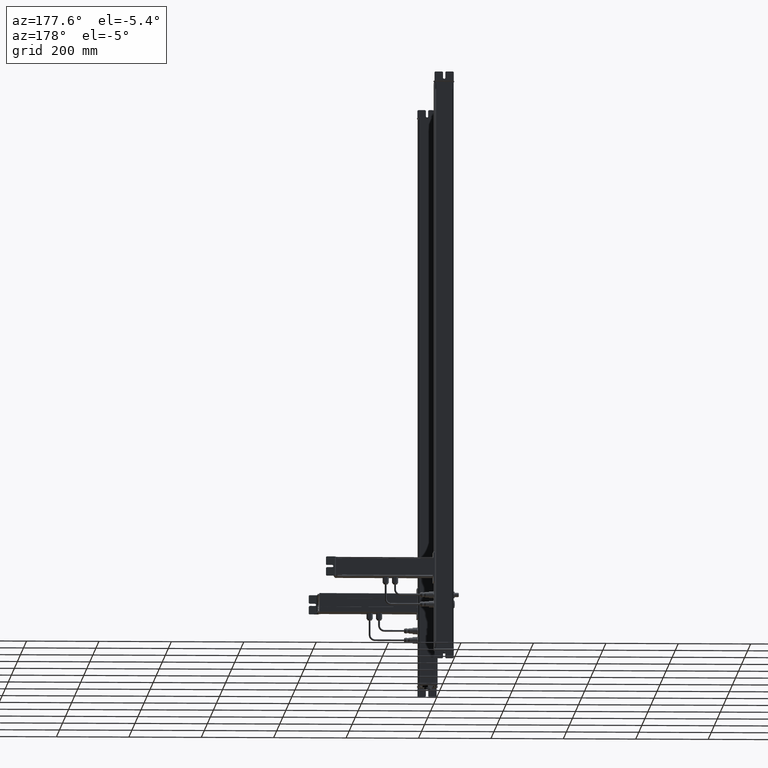
[diagram: clean part render]
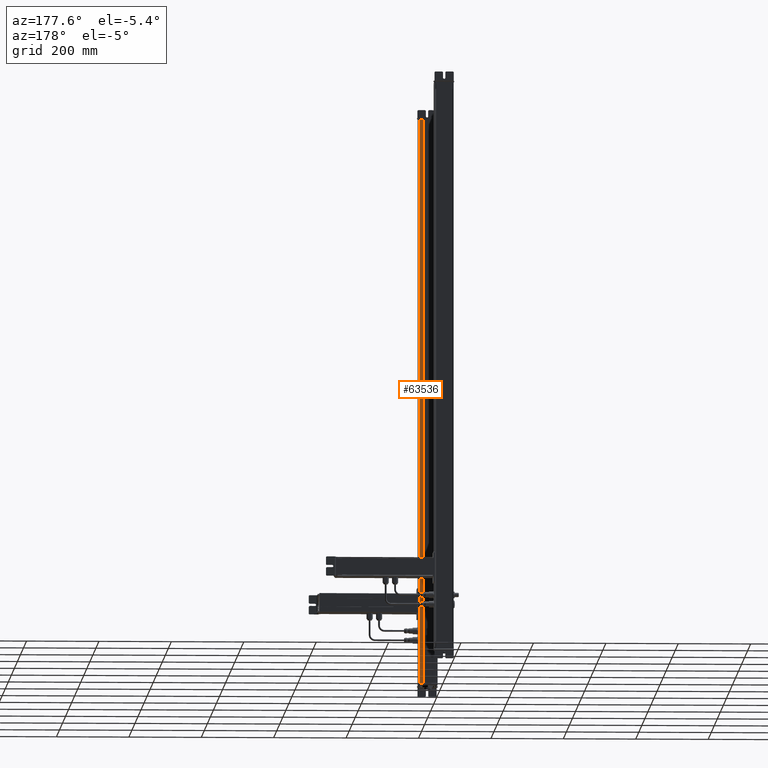
[diagram: same view with one face highlighted and labeled with its STEP entity id]
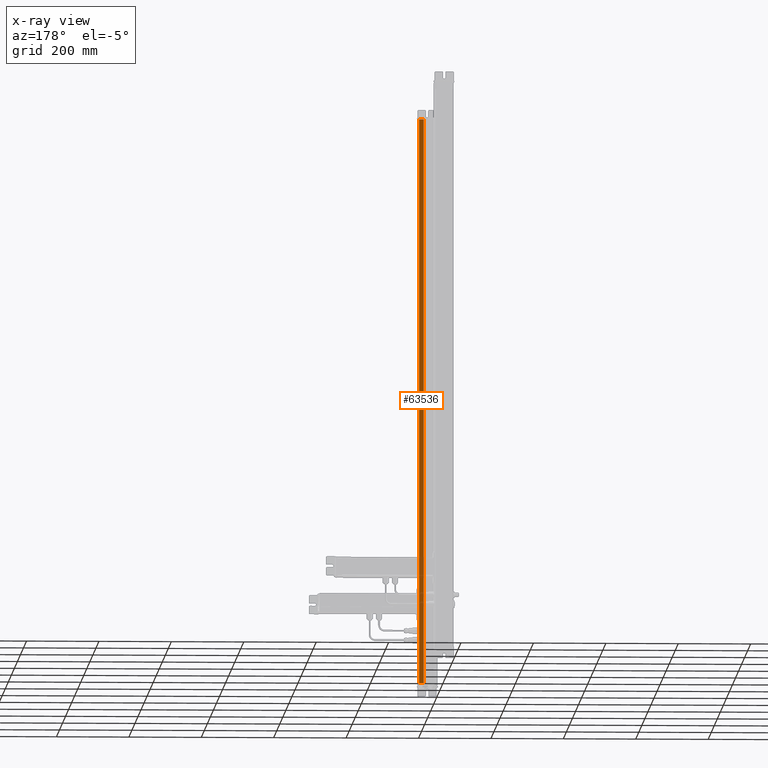
[diagram: x-ray of the same camera — body ghosted, the highlighted face saturated]
A machine part, auxiliary view. The second image highlights one B-rep face of the part: STEP entity #63536.
The next image is the same camera in x-ray: the body ghosted, the highlighted face saturated — about 5% of this face is hidden behind the body in this view.
In plain terms, the highlighted planar face has unit normal (0, 1, 0).
Its self-contained STEP definition (entity closure, byte-faithful):
#59637=CARTESIAN_POINT('Axis2P3D Location',(664.195883662,182.060203323,0.)) ;
#63489=CARTESIAN_POINT('Vertex',(664.195883661,182.060203323,0.)) ;
#63492=CARTESIAN_POINT('Line Origine',(664.195883661,182.060203323,781.)) ;
#63496=CARTESIAN_POINT('Vertex',(664.195883661,182.060203323,1562.)) ;
#63511=CARTESIAN_POINT('Line Origine',(657.845883661,182.060203323,0.)) ;
#63515=CARTESIAN_POINT('Vertex',(651.495883661,182.060203323,0.)) ;
#63518=CARTESIAN_POINT('Line Origine',(651.495883661,182.060203323,781.)) ;
#63522=CARTESIAN_POINT('Vertex',(651.495883661,182.060203323,1562.)) ;
#63525=CARTESIAN_POINT('Line Origine',(657.845883661,182.060203323,1562.)) ;
#59638=DIRECTION('Axis2P3D Direction',(0.,1.,-0.)) ;
#59639=DIRECTION('Axis2P3D XDirection',(-1.,0.,0.)) ;
#63493=DIRECTION('Vector Direction',(0.,0.,1.)) ;
#63512=DIRECTION('Vector Direction',(-1.,0.,0.)) ;
#63519=DIRECTION('Vector Direction',(0.,0.,1.)) ;
#63526=DIRECTION('Vector Direction',(-1.,0.,0.)) ;
#59640=AXIS2_PLACEMENT_3D('Plane Axis2P3D',#59637,#59638,#59639) ;
#63531=ORIENTED_EDGE('',*,*,#63498,.F.) ;
#63532=ORIENTED_EDGE('',*,*,#63517,.T.) ;
#63533=ORIENTED_EDGE('',*,*,#63524,.T.) ;
#63534=ORIENTED_EDGE('',*,*,#63529,.F.) ;
#63494=VECTOR('Line Direction',#63493,1.) ;
#63513=VECTOR('Line Direction',#63512,1.) ;
#63520=VECTOR('Line Direction',#63519,1.) ;
#63527=VECTOR('Line Direction',#63526,1.) ;
#63536=ADVANCED_FACE('Body.2',(#63535),#59641,.T.) ;
#63498=EDGE_CURVE('',#63490,#63497,#63495,.T.) ;
#63517=EDGE_CURVE('',#63490,#63516,#63514,.T.) ;
#63524=EDGE_CURVE('',#63516,#63523,#63521,.T.) ;
#63529=EDGE_CURVE('',#63497,#63523,#63528,.T.) ;
#63530=EDGE_LOOP('',(#63531,#63532,#63533,#63534)) ;
#63535=FACE_OUTER_BOUND('',#63530,.T.) ;
#63495=LINE('Line',#63492,#63494) ;
#63514=LINE('Line',#63511,#63513) ;
#63521=LINE('Line',#63518,#63520) ;
#63528=LINE('Line',#63525,#63527) ;
#59641=PLANE('Plane',#59640) ;
#63490=VERTEX_POINT('',#63489) ;
#63497=VERTEX_POINT('',#63496) ;
#63516=VERTEX_POINT('',#63515) ;
#63523=VERTEX_POINT('',#63522) ;